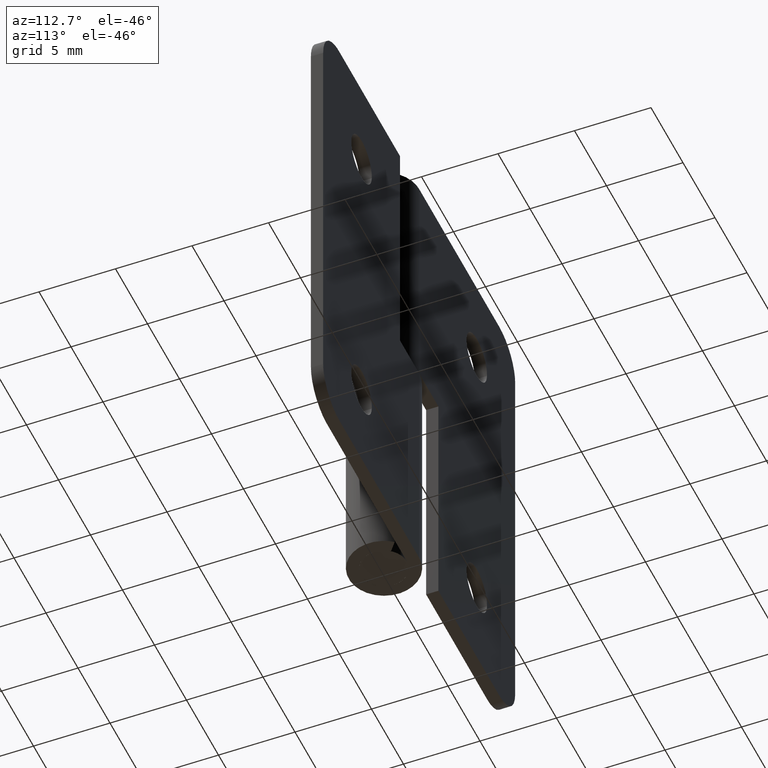
[diagram: clean part render]
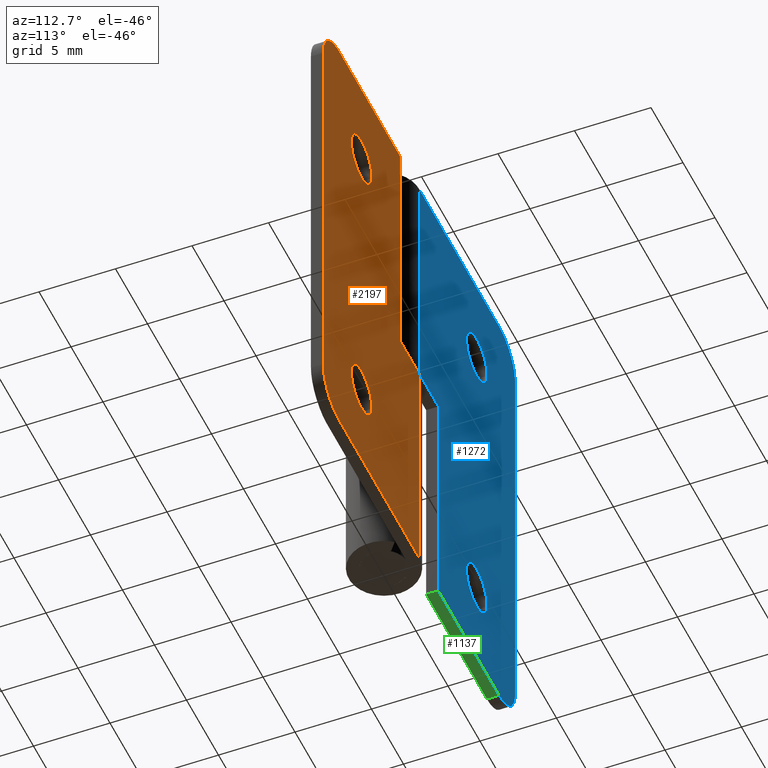
[diagram: same view with three faces highlighted in distinct colors, each labeled with its STEP entity id]
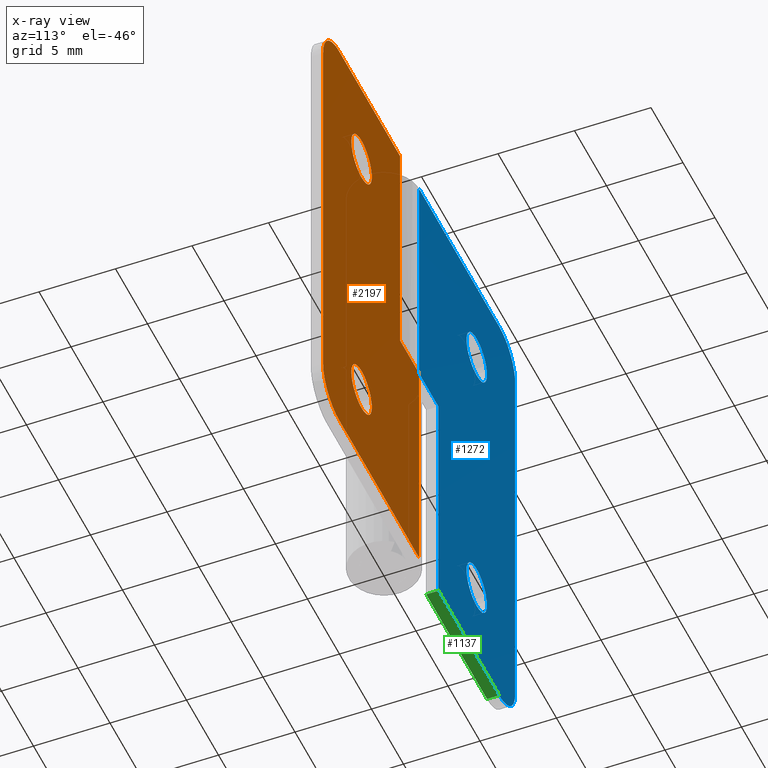
[diagram: x-ray of the same camera — body ghosted, the three highlighted faces saturated]
A machine part, auxiliary view with three faces highlighted in distinct colors.
The next image is the same camera in x-ray (body ghosted, the three faces saturated) — at least one of them is partly hidden behind the body in this view.
Their STEP definitions:

[orange] entity #2197 — the highlighted face is a freeform B-spline surface patch.
#1394=CARTESIAN_POINT('',(7.404932266033283,2.299999000000000,25.874457446757969));
#1395=VERTEX_POINT('',#1394);
#1401=CARTESIAN_POINT('',(9.000000000000199,2.299999000000000,27.599991999999901));
#1402=VERTEX_POINT('',#1401);
#1403=CARTESIAN_POINT('',(7.404932266033283,2.299999000000000,25.874457446757976));
#1404=CARTESIAN_POINT('',(7.400000000000200,2.299999000000000,25.937127828709901));
#1405=CARTESIAN_POINT('',(7.400000000000199,2.299999000000000,25.999991999999899));
#1406=CARTESIAN_POINT('',(7.400000000000198,2.299999000000000,27.599991999999908));
#1407=CARTESIAN_POINT('',(9.000000000000199,2.299999000000000,27.599991999999901));
#1415=(BOUNDED_CURVE()B_SPLINE_CURVE(2,(#1403,#1404,#1405,#1406,#1407),.UNSPECIFIED.,.F.,.U.)B_SPLINE_CURVE_WITH_KNOTS((3,2,3),(0.736331300616135,0.750000000000000,1.0),.UNSPECIFIED.)CURVE()GEOMETRIC_REPRESENTATION_ITEM()RATIONAL_B_SPLINE_CURVE((0.969723356137106,0.983986122561865,1.0,0.707106781186548,1.0))REPRESENTATION_ITEM(''));
#1416=EDGE_CURVE('',#1395,#1402,#1415,.T.);
#1418=CARTESIAN_POINT('',(10.595067733967110,2.299999000000000,26.125526553241830));
#1419=VERTEX_POINT('',#1418);
#1420=CARTESIAN_POINT('',(9.000000000000199,2.299999000000000,27.599991999999901));
#1421=CARTESIAN_POINT('',(10.479024786509390,2.299999000000001,27.599991999999901));
#1422=CARTESIAN_POINT('',(10.595067733967113,2.299999000000001,26.125526553241837));
#1430=(BOUNDED_CURVE()B_SPLINE_CURVE(2,(#1420,#1421,#1422),.UNSPECIFIED.,.F.,.U.)B_SPLINE_CURVE_WITH_KNOTS((3,3),(0.0,0.236331300616135),.UNSPECIFIED.)CURVE()GEOMETRIC_REPRESENTATION_ITEM()RATIONAL_B_SPLINE_CURVE((1.0,0.723120658624682,0.969723356137106))REPRESENTATION_ITEM(''));
#1431=EDGE_CURVE('',#1402,#1419,#1430,.T.);
#1477=CARTESIAN_POINT('',(9.000000000000199,2.299999000000000,24.399991999999902));
#1478=VERTEX_POINT('',#1477);
#1479=CARTESIAN_POINT('',(10.595067733967111,2.299999000000000,26.125526553241830));
#1480=CARTESIAN_POINT('',(10.600000000000200,2.299999000000001,26.062856171289916));
#1481=CARTESIAN_POINT('',(10.600000000000200,2.299999000000000,25.999991999999899));
#1482=CARTESIAN_POINT('',(10.600000000000200,2.299999000000000,24.399991999999902));
#1483=CARTESIAN_POINT('',(9.000000000000199,2.299999000000000,24.399991999999902));
#1491=(BOUNDED_CURVE()B_SPLINE_CURVE(2,(#1479,#1480,#1481,#1482,#1483),.UNSPECIFIED.,.F.,.U.)B_SPLINE_CURVE_WITH_KNOTS((3,2,3),(0.236331300616135,0.250000000000000,0.500000000000000),.UNSPECIFIED.)CURVE()GEOMETRIC_REPRESENTATION_ITEM()RATIONAL_B_SPLINE_CURVE((0.969723356137106,0.983986122561865,1.0,0.707106781186548,1.0))REPRESENTATION_ITEM(''));
#1492=EDGE_CURVE('',#1419,#1478,#1491,.T.);
#1494=CARTESIAN_POINT('',(9.000000000000199,2.299999000000000,24.399991999999902));
#1495=CARTESIAN_POINT('',(7.520975213491009,2.299999000000001,24.399991999999902));
#1496=CARTESIAN_POINT('',(7.404932266033283,2.299999000000000,25.874457446757969));
#1504=(BOUNDED_CURVE()B_SPLINE_CURVE(2,(#1494,#1495,#1496),.UNSPECIFIED.,.F.,.U.)B_SPLINE_CURVE_WITH_KNOTS((3,3),(0.500000000000000,0.736331300616135),.UNSPECIFIED.)CURVE()GEOMETRIC_REPRESENTATION_ITEM()RATIONAL_B_SPLINE_CURVE((1.0,0.723120658624682,0.969723356137106))REPRESENTATION_ITEM(''));
#1505=EDGE_CURVE('',#1478,#1395,#1504,.T.);
#1576=CARTESIAN_POINT('',(7.404932266033284,2.299999000000000,5.874465446758169));
#1577=VERTEX_POINT('',#1576);
#1583=CARTESIAN_POINT('',(9.000000000000199,2.299999000000000,7.600000000000100));
#1584=VERTEX_POINT('',#1583);
#1585=CARTESIAN_POINT('',(7.404932266033284,2.299999000000001,5.874465446758169));
#1586=CARTESIAN_POINT('',(7.400000000000200,2.299998999999999,5.937135828710090));
#1587=CARTESIAN_POINT('',(7.400000000000199,2.299999000000000,6.000000000000100));
#1588=CARTESIAN_POINT('',(7.400000000000198,2.299999000000000,7.600000000000100));
#1589=CARTESIAN_POINT('',(9.000000000000199,2.299999000000000,7.600000000000100));
#1597=(BOUNDED_CURVE()B_SPLINE_CURVE(2,(#1585,#1586,#1587,#1588,#1589),.UNSPECIFIED.,.F.,.U.)B_SPLINE_CURVE_WITH_KNOTS((3,2,3),(0.736331300616135,0.750000000000000,1.0),.UNSPECIFIED.)CURVE()GEOMETRIC_REPRESENTATION_ITEM()RATIONAL_B_SPLINE_CURVE((0.969723356137106,0.983986122561865,1.0,0.707106781186548,1.0))REPRESENTATION_ITEM(''));
#1598=EDGE_CURVE('',#1577,#1584,#1597,.T.);
#1600=CARTESIAN_POINT('',(10.595067733967110,2.299999000000000,6.125534553242029));
#1601=VERTEX_POINT('',#1600);
#1602=CARTESIAN_POINT('',(9.000000000000199,2.299999000000000,7.600000000000100));
#1603=CARTESIAN_POINT('',(10.479024786509390,2.299999000000001,7.600000000000100));
#1604=CARTESIAN_POINT('',(10.595067733967113,2.299999000000001,6.125534553242029));
#1612=(BOUNDED_CURVE()B_SPLINE_CURVE(2,(#1602,#1603,#1604),.UNSPECIFIED.,.F.,.U.)B_SPLINE_CURVE_WITH_KNOTS((3,3),(0.0,0.236331300616135),.UNSPECIFIED.)CURVE()GEOMETRIC_REPRESENTATION_ITEM()RATIONAL_B_SPLINE_CURVE((1.0,0.723120658624682,0.969723356137106))REPRESENTATION_ITEM(''));
#1613=EDGE_CURVE('',#1584,#1601,#1612,.T.);
#1659=CARTESIAN_POINT('',(9.000000000000199,2.299999000000000,4.400000000000100));
#1660=VERTEX_POINT('',#1659);
#1661=CARTESIAN_POINT('',(10.595067733967111,2.299999000000000,6.125534553242029));
#1662=CARTESIAN_POINT('',(10.600000000000200,2.299999000000001,6.062864171290108));
#1663=CARTESIAN_POINT('',(10.600000000000200,2.299999000000000,6.000000000000100));
#1664=CARTESIAN_POINT('',(10.600000000000200,2.299999000000000,4.400000000000100));
#1665=CARTESIAN_POINT('',(9.000000000000199,2.299999000000000,4.400000000000100));
#1673=(BOUNDED_CURVE()B_SPLINE_CURVE(2,(#1661,#1662,#1663,#1664,#1665),.UNSPECIFIED.,.F.,.U.)B_SPLINE_CURVE_WITH_KNOTS((3,2,3),(0.236331300616135,0.250000000000000,0.500000000000000),.UNSPECIFIED.)CURVE()GEOMETRIC_REPRESENTATION_ITEM()RATIONAL_B_SPLINE_CURVE((0.969723356137106,0.983986122561865,1.0,0.707106781186548,1.0))REPRESENTATION_ITEM(''));
#1674=EDGE_CURVE('',#1601,#1660,#1673,.T.);
#1676=CARTESIAN_POINT('',(9.000000000000199,2.299999000000000,4.400000000000100));
#1677=CARTESIAN_POINT('',(7.520975213491009,2.299999000000001,4.400000000000101));
#1678=CARTESIAN_POINT('',(7.404932266033284,2.299999000000001,5.874465446758169));
#1686=(BOUNDED_CURVE()B_SPLINE_CURVE(2,(#1676,#1677,#1678),.UNSPECIFIED.,.F.,.U.)B_SPLINE_CURVE_WITH_KNOTS((3,3),(0.500000000000000,0.736331300616135),.UNSPECIFIED.)CURVE()GEOMETRIC_REPRESENTATION_ITEM()RATIONAL_B_SPLINE_CURVE((1.0,0.723120658624682,0.969723356137106))REPRESENTATION_ITEM(''));
#1687=EDGE_CURVE('',#1660,#1577,#1686,.T.);
#1737=CARTESIAN_POINT('',(12.500000000000000,2.299999000000000,0.0));
#1738=VERTEX_POINT('',#1737);
#1744=CARTESIAN_POINT('',(15.0,2.299999000000000,2.499999999999945));
#1745=VERTEX_POINT('',#1744);
#1746=CARTESIAN_POINT('',(12.500000000000000,2.299999000000000,0.0));
#1747=CARTESIAN_POINT('',(15.000000000000009,2.299999000000000,0.0));
#1748=CARTESIAN_POINT('',(15.0,2.299999000000000,2.499999999999945));
#1756=(BOUNDED_CURVE()B_SPLINE_CURVE(2,(#1746,#1747,#1748),.UNSPECIFIED.,.F.,.U.)CURVE()GEOMETRIC_REPRESENTATION_ITEM()QUASI_UNIFORM_CURVE()RATIONAL_B_SPLINE_CURVE((1.0,0.707106781186548,1.0))REPRESENTATION_ITEM(''));
#1757=EDGE_CURVE('',#1738,#1745,#1756,.T.);
#1798=CARTESIAN_POINT('',(15.0,2.299999000000000,29.499991999999850));
#1799=VERTEX_POINT('',#1798);
#1805=CARTESIAN_POINT('',(12.500000000000000,2.299999000000000,31.999991999999889));
#1806=VERTEX_POINT('',#1805);
#1807=CARTESIAN_POINT('',(15.0,2.299999000000000,29.499991999999850));
#1808=CARTESIAN_POINT('',(15.000000000000009,2.299999000000000,31.999991999999853));
#1809=CARTESIAN_POINT('',(12.500000000000000,2.299999000000000,31.999991999999850));
#1817=(BOUNDED_CURVE()B_SPLINE_CURVE(2,(#1807,#1808,#1809),.UNSPECIFIED.,.F.,.U.)CURVE()GEOMETRIC_REPRESENTATION_ITEM()QUASI_UNIFORM_CURVE()RATIONAL_B_SPLINE_CURVE((1.0,0.707106781186548,1.0))REPRESENTATION_ITEM(''));
#1818=EDGE_CURVE('',#1799,#1806,#1817,.T.);
#1833=CARTESIAN_POINT('',(0.002144760839373,2.299999000000000,16.0));
#1834=VERTEX_POINT('',#1833);
#1898=CARTESIAN_POINT('',(3.000000000000200,2.299999000000000,16.0));
#1899=VERTEX_POINT('',#1898);
#1905=CARTESIAN_POINT('',(3.000000000000200,2.299999000000000,16.0));
#1906=CARTESIAN_POINT('',(0.002144760839373,2.299999000000000,16.0));
#1907=QUASI_UNIFORM_CURVE('',1,(#1905,#1906),.UNSPECIFIED.,.F.,.U.);
#1908=EDGE_CURVE('',#1899,#1834,#1907,.T.);
#1926=CARTESIAN_POINT('',(3.000000000000200,2.299999000000000,31.999991999999889));
#1927=VERTEX_POINT('',#1926);
#1933=CARTESIAN_POINT('',(3.000000000000200,2.299999000000000,31.999991999999889));
#1934=CARTESIAN_POINT('',(3.000000000000200,2.299999000000000,16.0));
#1935=QUASI_UNIFORM_CURVE('',1,(#1933,#1934),.UNSPECIFIED.,.F.,.U.);
#1936=EDGE_CURVE('',#1927,#1899,#1935,.T.);
#1981=CARTESIAN_POINT('',(0.002144760839373,2.299999000000000,0.0));
#1982=VERTEX_POINT('',#1981);
#2002=CARTESIAN_POINT('',(12.500000000000000,2.299999000000000,0.0));
#2003=CARTESIAN_POINT('',(0.002144760839373,2.299999000000000,0.0));
#2004=QUASI_UNIFORM_CURVE('',1,(#2002,#2003),.UNSPECIFIED.,.F.,.U.);
#2005=EDGE_CURVE('',#1738,#1982,#2004,.T.);
#2016=CARTESIAN_POINT('',(15.0,2.299999000000000,29.499991999999850));
#2017=CARTESIAN_POINT('',(15.0,2.299999000000000,2.499999999999945));
#2018=QUASI_UNIFORM_CURVE('',1,(#2016,#2017),.UNSPECIFIED.,.F.,.U.);
#2019=EDGE_CURVE('',#1799,#1745,#2018,.T.);
#2036=CARTESIAN_POINT('',(12.500000000000000,2.299999000000000,31.999991999999889));
#2037=CARTESIAN_POINT('',(3.000000000000200,2.299999000000000,31.999991999999889));
#2038=QUASI_UNIFORM_CURVE('',1,(#2036,#2037),.UNSPECIFIED.,.F.,.U.);
#2039=EDGE_CURVE('',#1806,#1927,#2038,.T.);
#2158=CARTESIAN_POINT('',(0.002144760839373,2.299999000000000,16.0));
#2159=CARTESIAN_POINT('',(0.002144760839373,2.299999000000000,0.0));
#2160=QUASI_UNIFORM_CURVE('',1,(#2158,#2159),.UNSPECIFIED.,.F.,.U.);
#2161=EDGE_CURVE('',#1834,#1982,#2160,.T.);
#2170=CARTESIAN_POINT('',(-0.746998079287947,2.299999000000000,-1.598399538377802));
#2171=CARTESIAN_POINT('',(-0.746998079287947,2.299999000000000,33.598392396684368));
#2172=CARTESIAN_POINT('',(15.749143242401150,2.299999000000000,-1.598399538377802));
#2173=CARTESIAN_POINT('',(15.749143242401150,2.299999000000000,33.598392396684382));
#2174=B_SPLINE_SURFACE_WITH_KNOTS('',1,1,((#2170,#2172),(#2171,#2173)),.UNSPECIFIED.,.F.,.F.,.U.,(2,2),(2,2),(0.0,35.196791935062180),(0.0,16.496141321689102),.UNSPECIFIED.);
#2175=ORIENTED_EDGE('',*,*,#2005,.T.);
#2176=ORIENTED_EDGE('',*,*,#2161,.F.);
#2177=ORIENTED_EDGE('',*,*,#1908,.F.);
#2178=ORIENTED_EDGE('',*,*,#1936,.F.);
#2179=ORIENTED_EDGE('',*,*,#2039,.F.);
#2180=ORIENTED_EDGE('',*,*,#1818,.F.);
#2181=ORIENTED_EDGE('',*,*,#2019,.T.);
#2182=ORIENTED_EDGE('',*,*,#1757,.F.);
#2183=EDGE_LOOP('',(#2175,#2176,#2177,#2178,#2179,#2180,#2181,#2182));
#2184=FACE_OUTER_BOUND('',#2183,.T.);
#2185=ORIENTED_EDGE('',*,*,#1687,.F.);
#2186=ORIENTED_EDGE('',*,*,#1674,.F.);
#2187=ORIENTED_EDGE('',*,*,#1613,.F.);
#2188=ORIENTED_EDGE('',*,*,#1598,.F.);
#2189=EDGE_LOOP('',(#2185,#2186,#2187,#2188));
#2190=FACE_BOUND('',#2189,.T.);
#2191=ORIENTED_EDGE('',*,*,#1505,.F.);
#2192=ORIENTED_EDGE('',*,*,#1492,.F.);
#2193=ORIENTED_EDGE('',*,*,#1431,.F.);
#2194=ORIENTED_EDGE('',*,*,#1416,.F.);
#2195=EDGE_LOOP('',(#2191,#2192,#2193,#2194));
#2196=FACE_BOUND('',#2195,.T.);
#2197=ADVANCED_FACE('',(#2184,#2190,#2196),#2174,.T.);

[blue] entity #1272 — the highlighted face is a freeform B-spline surface patch.
#459=CARTESIAN_POINT('',(-7.411184757819425,2.299999000000000,26.188846775463261));
#460=VERTEX_POINT('',#459);
#461=CARTESIAN_POINT('',(-8.999999999999799,2.299999000000000,24.399991999999902));
#462=VERTEX_POINT('',#461);
#463=CARTESIAN_POINT('',(-7.411184757819425,2.299999000000000,26.188846775463261));
#464=CARTESIAN_POINT('',(-7.399999999999799,2.299999000000000,26.094750591455639));
#465=CARTESIAN_POINT('',(-7.399999999999800,2.299999000000000,25.999991999999899));
#466=CARTESIAN_POINT('',(-7.399999999999801,2.299999000000000,24.399991999999902));
#467=CARTESIAN_POINT('',(-8.999999999999799,2.299999000000000,24.399991999999902));
#475=(BOUNDED_CURVE()B_SPLINE_CURVE(2,(#463,#464,#465,#466,#467),.UNSPECIFIED.,.F.,.U.)B_SPLINE_CURVE_WITH_KNOTS((3,2,3),(0.229562473512975,0.250000000000000,0.500000000000000),.UNSPECIFIED.)CURVE()GEOMETRIC_REPRESENTATION_ITEM()RATIONAL_B_SPLINE_CURVE((0.956026754182654,0.976055948330520,1.0,0.707106781186548,1.0))REPRESENTATION_ITEM(''));
#476=EDGE_CURVE('',#460,#462,#475,.T.);
#478=CARTESIAN_POINT('',(-10.597015677469701,2.299999000000001,25.902314336660911));
#479=VERTEX_POINT('',#478);
#480=CARTESIAN_POINT('',(-8.999999999999799,2.299999000000000,24.399991999999902));
#481=CARTESIAN_POINT('',(-10.505129706891758,2.299999000000001,24.399991999999905));
#482=CARTESIAN_POINT('',(-10.597015677469699,2.299999000000000,25.902314336660911));
#490=(BOUNDED_CURVE()B_SPLINE_CURVE(2,(#480,#481,#482),.UNSPECIFIED.,.F.,.U.)B_SPLINE_CURVE_WITH_KNOTS((3,3),(0.500000000000000,0.739332962223986),.UNSPECIFIED.)CURVE()GEOMETRIC_REPRESENTATION_ITEM()RATIONAL_B_SPLINE_CURVE((1.0,0.719603993304233,0.976072041634662))REPRESENTATION_ITEM(''));
#491=EDGE_CURVE('',#462,#479,#490,.T.);
#558=CARTESIAN_POINT('',(-8.999999999999799,2.299999000000000,27.599991999999901));
#559=VERTEX_POINT('',#558);
#560=CARTESIAN_POINT('',(-8.999999999999799,2.299999000000000,27.599991999999901));
#561=CARTESIAN_POINT('',(-7.578920758500213,2.299999000000001,27.599991999999908));
#562=CARTESIAN_POINT('',(-7.411184757819425,2.299999000000000,26.188846775463265));
#570=(BOUNDED_CURVE()B_SPLINE_CURVE(2,(#560,#561,#562),.UNSPECIFIED.,.F.,.U.)B_SPLINE_CURVE_WITH_KNOTS((3,3),(0.0,0.229562473512975),.UNSPECIFIED.)CURVE()GEOMETRIC_REPRESENTATION_ITEM()RATIONAL_B_SPLINE_CURVE((1.0,0.731050832856027,0.956026754182654))REPRESENTATION_ITEM(''));
#571=EDGE_CURVE('',#559,#460,#570,.T.);
#605=CARTESIAN_POINT('',(-10.597015677469701,2.299999000000001,25.902314336660911));
#606=CARTESIAN_POINT('',(-10.599999999999804,2.299999000000001,25.951107578638712));
#607=CARTESIAN_POINT('',(-10.599999999999801,2.299999000000000,25.999991999999899));
#608=CARTESIAN_POINT('',(-10.599999999999801,2.299999000000000,27.599991999999908));
#609=CARTESIAN_POINT('',(-8.999999999999799,2.299999000000000,27.599991999999901));
#617=(BOUNDED_CURVE()B_SPLINE_CURVE(2,(#605,#606,#607,#608,#609),.UNSPECIFIED.,.F.,.U.)B_SPLINE_CURVE_WITH_KNOTS((3,2,3),(0.739332962223985,0.750000000000000,1.0),.UNSPECIFIED.)CURVE()GEOMETRIC_REPRESENTATION_ITEM()RATIONAL_B_SPLINE_CURVE((0.976072041634661,0.987502787882313,1.0,0.707106781186548,1.0))REPRESENTATION_ITEM(''));
#618=EDGE_CURVE('',#479,#559,#617,.T.);
#645=CARTESIAN_POINT('',(-7.411184757819425,2.299999000000000,6.188854775463462));
#646=VERTEX_POINT('',#645);
#647=CARTESIAN_POINT('',(-8.999999999999799,2.299999000000000,4.400000000000100));
#648=VERTEX_POINT('',#647);
#649=CARTESIAN_POINT('',(-7.411184757819425,2.299999000000000,6.188854775463462));
#650=CARTESIAN_POINT('',(-7.399999999999799,2.299999000000000,6.094758591455836));
#651=CARTESIAN_POINT('',(-7.399999999999800,2.299999000000000,6.000000000000100));
#652=CARTESIAN_POINT('',(-7.399999999999801,2.299999000000000,4.400000000000100));
#653=CARTESIAN_POINT('',(-8.999999999999799,2.299999000000000,4.400000000000100));
#661=(BOUNDED_CURVE()B_SPLINE_CURVE(2,(#649,#650,#651,#652,#653),.UNSPECIFIED.,.F.,.U.)B_SPLINE_CURVE_WITH_KNOTS((3,2,3),(0.229562473512975,0.250000000000000,0.500000000000000),.UNSPECIFIED.)CURVE()GEOMETRIC_REPRESENTATION_ITEM()RATIONAL_B_SPLINE_CURVE((0.956026754182654,0.976055948330520,1.0,0.707106781186548,1.0))REPRESENTATION_ITEM(''));
#662=EDGE_CURVE('',#646,#648,#661,.T.);
#664=CARTESIAN_POINT('',(-10.597015677469701,2.299999000000000,5.902322336661106));
#665=VERTEX_POINT('',#664);
#666=CARTESIAN_POINT('',(-8.999999999999799,2.299999000000000,4.400000000000100));
#667=CARTESIAN_POINT('',(-10.505129706891758,2.299999000000001,4.400000000000100));
#668=CARTESIAN_POINT('',(-10.597015677469699,2.299999000000000,5.902322336661106));
#676=(BOUNDED_CURVE()B_SPLINE_CURVE(2,(#666,#667,#668),.UNSPECIFIED.,.F.,.U.)B_SPLINE_CURVE_WITH_KNOTS((3,3),(0.500000000000000,0.739332962223986),.UNSPECIFIED.)CURVE()GEOMETRIC_REPRESENTATION_ITEM()RATIONAL_B_SPLINE_CURVE((1.0,0.719603993304233,0.976072041634662))REPRESENTATION_ITEM(''));
#677=EDGE_CURVE('',#648,#665,#676,.T.);
#744=CARTESIAN_POINT('',(-8.999999999999799,2.299999000000000,7.600000000000100));
#745=VERTEX_POINT('',#744);
#746=CARTESIAN_POINT('',(-8.999999999999799,2.299999000000000,7.600000000000100));
#747=CARTESIAN_POINT('',(-7.578920758500216,2.299999000000001,7.600000000000101));
#748=CARTESIAN_POINT('',(-7.411184757819425,2.299999000000000,6.188854775463462));
#756=(BOUNDED_CURVE()B_SPLINE_CURVE(2,(#746,#747,#748),.UNSPECIFIED.,.F.,.U.)B_SPLINE_CURVE_WITH_KNOTS((3,3),(0.0,0.229562473512975),.UNSPECIFIED.)CURVE()GEOMETRIC_REPRESENTATION_ITEM()RATIONAL_B_SPLINE_CURVE((1.0,0.731050832856028,0.956026754182654))REPRESENTATION_ITEM(''));
#757=EDGE_CURVE('',#745,#646,#756,.T.);
#791=CARTESIAN_POINT('',(-10.597015677469695,2.299999000000000,5.902322336661107));
#792=CARTESIAN_POINT('',(-10.599999999999806,2.299999000000001,5.951115578638902));
#793=CARTESIAN_POINT('',(-10.599999999999801,2.299999000000000,6.000000000000100));
#794=CARTESIAN_POINT('',(-10.599999999999801,2.299999000000000,7.600000000000100));
#795=CARTESIAN_POINT('',(-8.999999999999799,2.299999000000000,7.600000000000100));
#803=(BOUNDED_CURVE()B_SPLINE_CURVE(2,(#791,#792,#793,#794,#795),.UNSPECIFIED.,.F.,.U.)B_SPLINE_CURVE_WITH_KNOTS((3,2,3),(0.739332962223985,0.750000000000000,1.0),.UNSPECIFIED.)CURVE()GEOMETRIC_REPRESENTATION_ITEM()RATIONAL_B_SPLINE_CURVE((0.976072041634660,0.987502787882313,1.0,0.707106781186548,1.0))REPRESENTATION_ITEM(''));
#804=EDGE_CURVE('',#665,#745,#803,.T.);
#823=CARTESIAN_POINT('',(-3.0,2.299999000000000,0.0));
#824=VERTEX_POINT('',#823);
#830=CARTESIAN_POINT('',(-3.0,2.299999000000000,16.0));
#831=VERTEX_POINT('',#830);
#832=CARTESIAN_POINT('',(-3.0,2.299999000000000,16.0));
#833=CARTESIAN_POINT('',(-3.0,2.299999000000000,0.0));
#834=QUASI_UNIFORM_CURVE('',1,(#832,#833),.UNSPECIFIED.,.F.,.U.);
#835=EDGE_CURVE('',#831,#824,#834,.T.);
#858=CARTESIAN_POINT('',(-0.002144760839373,2.299999000000000,16.0));
#859=VERTEX_POINT('',#858);
#860=CARTESIAN_POINT('',(-0.002144760839373,2.299999000000000,16.0));
#861=CARTESIAN_POINT('',(-3.0,2.299999000000000,16.0));
#862=QUASI_UNIFORM_CURVE('',1,(#860,#861),.UNSPECIFIED.,.F.,.U.);
#863=EDGE_CURVE('',#859,#831,#862,.T.);
#955=CARTESIAN_POINT('',(-12.499991999999899,2.299999000000000,31.999991999999889));
#956=VERTEX_POINT('',#955);
#962=CARTESIAN_POINT('',(-14.999991999999899,2.299999000000000,29.499991999999850));
#963=VERTEX_POINT('',#962);
#964=CARTESIAN_POINT('',(-12.499991999999899,2.299999000000000,31.999991999999899));
#965=CARTESIAN_POINT('',(-13.535525905932660,2.299999000000001,31.999991999999896));
#966=CARTESIAN_POINT('',(-14.267758952966290,2.299999000000000,31.267758952966251));
#967=CARTESIAN_POINT('',(-14.999991999999899,2.299999000000001,30.535525905932623));
#968=CARTESIAN_POINT('',(-14.999991999999899,2.299999000000000,29.499991999999899));
#976=(BOUNDED_CURVE()B_SPLINE_CURVE(2,(#964,#965,#966,#967,#968),.UNSPECIFIED.,.F.,.U.)B_SPLINE_CURVE_WITH_KNOTS((3,2,3),(0.0,0.500000000000000,1.0),.UNSPECIFIED.)CURVE()GEOMETRIC_REPRESENTATION_ITEM()RATIONAL_B_SPLINE_CURVE((1.0,0.923879532511285,1.0,0.923879532511285,1.0))REPRESENTATION_ITEM(''));
#977=EDGE_CURVE('',#956,#963,#976,.T.);
#1018=CARTESIAN_POINT('',(-14.999991999999899,2.299999000000000,2.499999999999945));
#1019=VERTEX_POINT('',#1018);
#1025=CARTESIAN_POINT('',(-12.499991999999899,2.299999000000000,0.0));
#1026=VERTEX_POINT('',#1025);
#1027=CARTESIAN_POINT('',(-14.999991999999899,2.299999000000000,2.499999999999945));
#1028=CARTESIAN_POINT('',(-14.999991999999910,2.299999000000000,-5.507747E-014));
#1029=CARTESIAN_POINT('',(-12.499991999999899,2.299999000000000,0.0));
#1037=(BOUNDED_CURVE()B_SPLINE_CURVE(2,(#1027,#1028,#1029),.UNSPECIFIED.,.F.,.U.)CURVE()GEOMETRIC_REPRESENTATION_ITEM()QUASI_UNIFORM_CURVE()RATIONAL_B_SPLINE_CURVE((1.0,0.707106781186548,1.0))REPRESENTATION_ITEM(''));
#1038=EDGE_CURVE('',#1019,#1026,#1037,.T.);
#1088=CARTESIAN_POINT('',(-0.002144760839373,2.299999000000000,31.999991999999889));
#1089=VERTEX_POINT('',#1088);
#1109=CARTESIAN_POINT('',(-12.499991999999899,2.299999000000000,31.999991999999889));
#1110=CARTESIAN_POINT('',(-0.002144760839373,2.299999000000000,31.999991999999889));
#1111=QUASI_UNIFORM_CURVE('',1,(#1109,#1110),.UNSPECIFIED.,.F.,.U.);
#1112=EDGE_CURVE('',#956,#1089,#1111,.T.);
#1130=CARTESIAN_POINT('',(-12.499991999999899,2.299999000000000,0.0));
#1131=CARTESIAN_POINT('',(-3.0,2.299999000000000,0.0));
#1132=QUASI_UNIFORM_CURVE('',1,(#1130,#1131),.UNSPECIFIED.,.F.,.U.);
#1133=EDGE_CURVE('',#1026,#824,#1132,.T.);
#1181=CARTESIAN_POINT('',(-0.002144760839373,2.299999000000000,16.0));
#1182=CARTESIAN_POINT('',(-0.002144760839373,2.299999000000000,31.999991999999889));
#1183=QUASI_UNIFORM_CURVE('',1,(#1181,#1182),.UNSPECIFIED.,.F.,.U.);
#1184=EDGE_CURVE('',#859,#1089,#1183,.T.);
#1203=CARTESIAN_POINT('',(-14.999991999999899,2.299999000000000,2.499999999999945));
#1204=CARTESIAN_POINT('',(-14.999991999999899,2.299999000000000,29.499991999999850));
#1205=QUASI_UNIFORM_CURVE('',1,(#1203,#1204),.UNSPECIFIED.,.F.,.U.);
#1206=EDGE_CURVE('',#1019,#963,#1205,.T.);
#1245=CARTESIAN_POINT('',(-15.749134862894410,2.299999000000000,-1.598399538377802));
#1246=CARTESIAN_POINT('',(-15.749134862894410,2.299999000000000,33.598392396684368));
#1247=CARTESIAN_POINT('',(0.746998102055132,2.299999000000000,-1.598399538377802));
#1248=CARTESIAN_POINT('',(0.746998102055132,2.299999000000000,33.598392396684368));
#1249=B_SPLINE_SURFACE_WITH_KNOTS('',1,1,((#1245,#1247),(#1246,#1248)),.UNSPECIFIED.,.F.,.F.,.U.,(2,2),(2,2),(0.0,35.196791935062173),(0.0,16.496132964949538),.UNSPECIFIED.);
#1250=ORIENTED_EDGE('',*,*,#863,.T.);
#1251=ORIENTED_EDGE('',*,*,#835,.T.);
#1252=ORIENTED_EDGE('',*,*,#1133,.F.);
#1253=ORIENTED_EDGE('',*,*,#1038,.F.);
#1254=ORIENTED_EDGE('',*,*,#1206,.T.);
#1255=ORIENTED_EDGE('',*,*,#977,.F.);
#1256=ORIENTED_EDGE('',*,*,#1112,.T.);
#1257=ORIENTED_EDGE('',*,*,#1184,.F.);
#1258=EDGE_LOOP('',(#1250,#1251,#1252,#1253,#1254,#1255,#1256,#1257));
#1259=FACE_OUTER_BOUND('',#1258,.T.);
#1260=ORIENTED_EDGE('',*,*,#677,.F.);
#1261=ORIENTED_EDGE('',*,*,#662,.F.);
#1262=ORIENTED_EDGE('',*,*,#757,.F.);
#1263=ORIENTED_EDGE('',*,*,#804,.F.);
#1264=EDGE_LOOP('',(#1260,#1261,#1262,#1263));
#1265=FACE_BOUND('',#1264,.T.);
#1266=ORIENTED_EDGE('',*,*,#491,.F.);
#1267=ORIENTED_EDGE('',*,*,#476,.F.);
#1268=ORIENTED_EDGE('',*,*,#571,.F.);
#1269=ORIENTED_EDGE('',*,*,#618,.F.);
#1270=EDGE_LOOP('',(#1266,#1267,#1268,#1269));
#1271=FACE_BOUND('',#1270,.T.);
#1272=ADVANCED_FACE('',(#1259,#1265,#1271),#1249,.T.);

[green] entity #1137 — the highlighted face is a freeform B-spline surface patch.
#814=CARTESIAN_POINT('',(-3.0,1.499999999999946,0.0));
#815=VERTEX_POINT('',#814);
#823=CARTESIAN_POINT('',(-3.0,2.299999000000000,0.0));
#824=VERTEX_POINT('',#823);
#825=CARTESIAN_POINT('',(-3.0,1.499999999999946,0.0));
#826=CARTESIAN_POINT('',(-3.0,2.299999000000000,0.0));
#827=QUASI_UNIFORM_CURVE('',1,(#825,#826),.UNSPECIFIED.,.F.,.U.);
#828=EDGE_CURVE('',#815,#824,#827,.T.);
#1001=CARTESIAN_POINT('',(-12.499991999999899,1.499999999999986,0.0));
#1002=VERTEX_POINT('',#1001);
#1025=CARTESIAN_POINT('',(-12.499991999999899,2.299999000000000,0.0));
#1026=VERTEX_POINT('',#1025);
#1040=CARTESIAN_POINT('',(-12.499991999999899,2.299999000000000,0.0));
#1041=CARTESIAN_POINT('',(-12.499991999999899,1.499999999999986,0.0));
#1042=QUASI_UNIFORM_CURVE('',1,(#1040,#1041),.UNSPECIFIED.,.F.,.U.);
#1043=EDGE_CURVE('',#1026,#1002,#1042,.T.);
#1118=CARTESIAN_POINT('',(-2.525475418012833,2.339958948499450,0.0));
#1119=CARTESIAN_POINT('',(-12.974516836796710,2.339958948499450,0.0));
#1120=CARTESIAN_POINT('',(-2.525475418012833,1.460040030042851,0.0));
#1121=CARTESIAN_POINT('',(-12.974516836796710,1.460040030042851,0.0));
#1122=B_SPLINE_SURFACE_WITH_KNOTS('',1,1,((#1118,#1120),(#1119,#1121)),.UNSPECIFIED.,.F.,.F.,.U.,(2,2),(2,2),(0.0,10.449041418783880),(0.041708334948495,0.958291687403247),.UNSPECIFIED.);
#1123=ORIENTED_EDGE('',*,*,#828,.F.);
#1124=CARTESIAN_POINT('',(-3.0,1.499999999999946,0.0));
#1125=CARTESIAN_POINT('',(-12.499991999999899,1.499999999999986,0.0));
#1126=QUASI_UNIFORM_CURVE('',1,(#1124,#1125),.UNSPECIFIED.,.F.,.U.);
#1127=EDGE_CURVE('',#815,#1002,#1126,.T.);
#1128=ORIENTED_EDGE('',*,*,#1127,.T.);
#1129=ORIENTED_EDGE('',*,*,#1043,.F.);
#1130=CARTESIAN_POINT('',(-12.499991999999899,2.299999000000000,0.0));
#1131=CARTESIAN_POINT('',(-3.0,2.299999000000000,0.0));
#1132=QUASI_UNIFORM_CURVE('',1,(#1130,#1131),.UNSPECIFIED.,.F.,.U.);
#1133=EDGE_CURVE('',#1026,#824,#1132,.T.);
#1134=ORIENTED_EDGE('',*,*,#1133,.T.);
#1135=EDGE_LOOP('',(#1123,#1128,#1129,#1134));
#1136=FACE_OUTER_BOUND('',#1135,.T.);
#1137=ADVANCED_FACE('',(#1136),#1122,.F.);